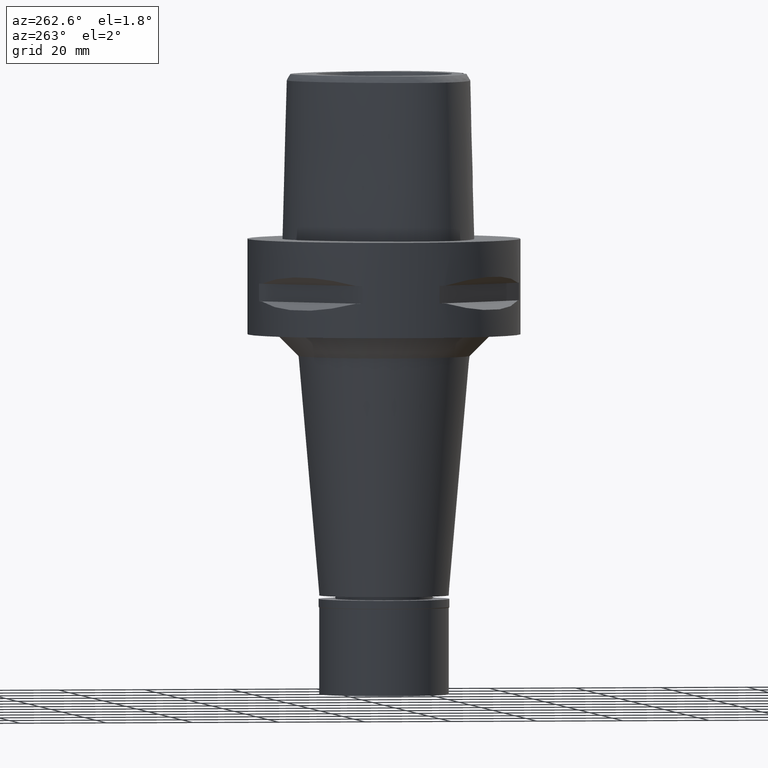
[diagram: clean part render]
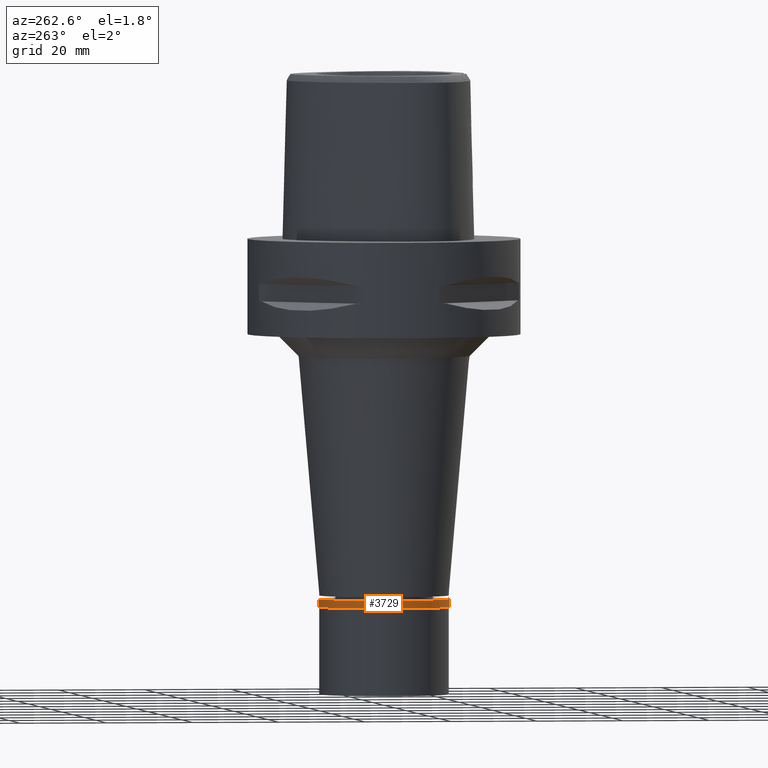
[diagram: same view with one face highlighted and labeled with its STEP entity id]
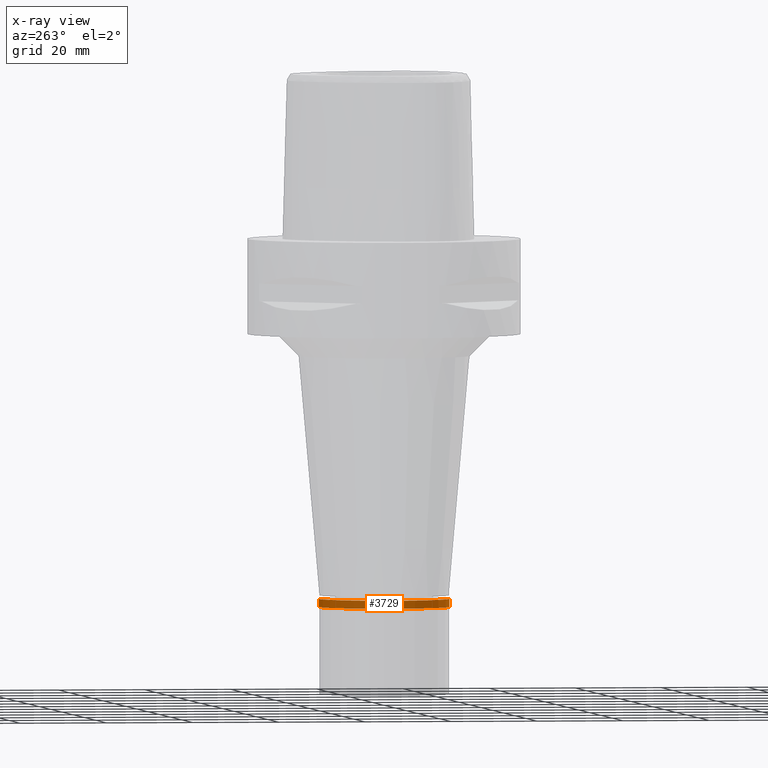
[diagram: x-ray of the same camera — body ghosted, the highlighted face saturated]
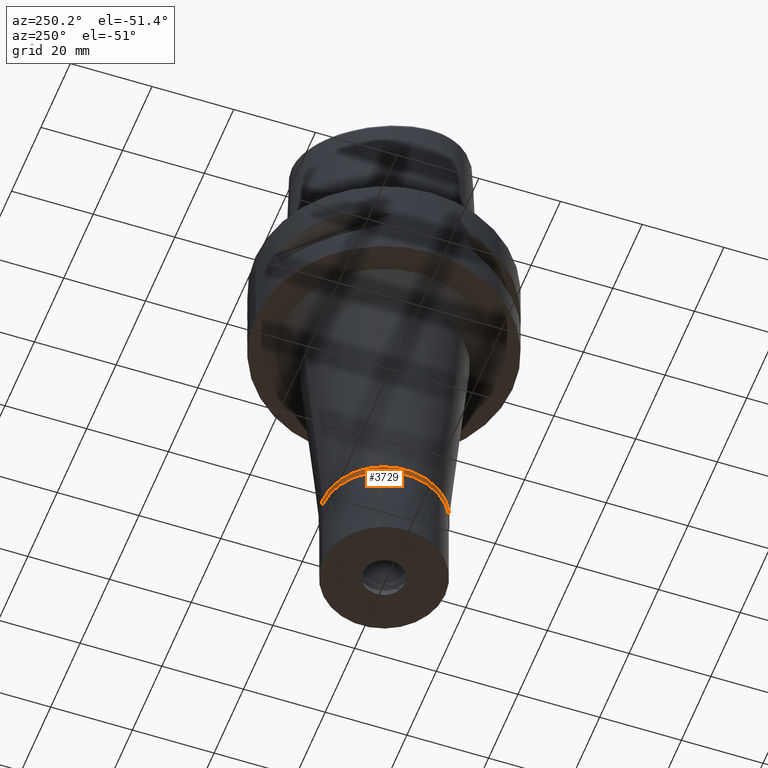
[diagram: same view with one face highlighted and labeled with its STEP entity id]
A machine part, auxiliary view. The second image highlights one B-rep face of the part: STEP entity #3729.
The next image is the same camera in x-ray: the body ghosted, the highlighted face saturated — about 0% of this face is hidden behind the body in this view.
A second angle (auxiliary view) of the same face is appended — the face is thin or edge-on in the first view.
In plain terms, the highlighted cylindrical surface (partial cylindrical patch) has radius 15.15 mm, axis along (0, 0, -1).
Its self-contained STEP definition (entity closure, byte-faithful):
#16 = ORIENTED_EDGE ( 'NONE', *, *, #1906, .T. ) ;
#24 = DIRECTION ( 'NONE',  ( 0.0000000000000000000, -1.000000000000000000, 0.0000000000000000000 ) ) ;
#305 = VECTOR ( 'NONE', #2811, 1000.000000000000000 ) ;
#320 = ORIENTED_EDGE ( 'NONE', *, *, #4412, .T. ) ;
#612 = ORIENTED_EDGE ( 'NONE', *, *, #2991, .T. ) ;
#761 = DIRECTION ( 'NONE',  ( 0.0000000000000000000, 0.0000000000000000000, -1.000000000000000000 ) ) ;
#823 = CYLINDRICAL_SURFACE ( 'NONE', #1797, 15.15000000000000036 ) ;
#888 = CIRCLE ( 'NONE', #3337, 15.15000000000000036 ) ;
#1219 = CARTESIAN_POINT ( 'NONE',  ( 0.0000000000000000000, -15.15000000000000036, 0.0000000000000000000 ) ) ;
#1575 = EDGE_CURVE ( 'NONE', #4929, #1802, #3258, .T. ) ;
#1718 = VECTOR ( 'NONE', #4864, 1000.000000000000000 ) ;
#1797 = AXIS2_PLACEMENT_3D ( 'NONE', #3608, #3170, #24 ) ;
#1802 = VERTEX_POINT ( 'NONE', #2567 ) ;
#1873 = DIRECTION ( 'NONE',  ( 0.0000000000000000000, 1.000000000000000000, 0.0000000000000000000 ) ) ;
#1906 = EDGE_CURVE ( 'NONE', #4929, #4690, #5049, .T. ) ;
#1974 = FACE_OUTER_BOUND ( 'NONE', #3096, .T. ) ;
#2165 = CARTESIAN_POINT ( 'NONE',  ( 0.0000000000000000000, -15.15000000000000036, 0.0000000000000000000 ) ) ;
#2202 = CARTESIAN_POINT ( 'NONE',  ( 0.0000000000000000000, 15.15000000000000036, -1.850000000000000089 ) ) ;
#2480 = LINE ( 'NONE', #4039, #1718 ) ;
#2522 = AXIS2_PLACEMENT_3D ( 'NONE', #3432, #761, #4613 ) ;
#2567 = CARTESIAN_POINT ( 'NONE',  ( 0.0000000000000000000, -15.15000000000000036, -1.850000000000000089 ) ) ;
#2811 = DIRECTION ( 'NONE',  ( 0.0000000000000000000, 0.0000000000000000000, -1.000000000000000000 ) ) ;
#2991 = EDGE_CURVE ( 'NONE', #4690, #3107, #2480, .T. ) ;
#3096 = EDGE_LOOP ( 'NONE', ( #320, #3759, #16, #612 ) ) ;
#3107 = VERTEX_POINT ( 'NONE', #2202 ) ;
#3170 = DIRECTION ( 'NONE',  ( 0.0000000000000000000, 0.0000000000000000000, -1.000000000000000000 ) ) ;
#3258 = LINE ( 'NONE', #1219, #305 ) ;
#3337 = AXIS2_PLACEMENT_3D ( 'NONE', #3841, #3449, #1873 ) ;
#3432 = CARTESIAN_POINT ( 'NONE',  ( 0.0000000000000000000, 0.0000000000000000000, 0.0000000000000000000 ) ) ;
#3449 = DIRECTION ( 'NONE',  ( 0.0000000000000000000, 0.0000000000000000000, 1.000000000000000000 ) ) ;
#3608 = CARTESIAN_POINT ( 'NONE',  ( 0.0000000000000000000, 0.0000000000000000000, 0.0000000000000000000 ) ) ;
#3729 = ADVANCED_FACE ( 'NONE', ( #1974 ), #823, .T. ) ;
#3759 = ORIENTED_EDGE ( 'NONE', *, *, #1575, .F. ) ;
#3841 = CARTESIAN_POINT ( 'NONE',  ( 0.0000000000000000000, 0.0000000000000000000, -1.850000000000000089 ) ) ;
#3857 = CARTESIAN_POINT ( 'NONE',  ( 0.0000000000000000000, 15.15000000000000036, 0.0000000000000000000 ) ) ;
#4039 = CARTESIAN_POINT ( 'NONE',  ( 0.0000000000000000000, 15.15000000000000036, 0.0000000000000000000 ) ) ;
#4412 = EDGE_CURVE ( 'NONE', #3107, #1802, #888, .T. ) ;
#4613 = DIRECTION ( 'NONE',  ( 0.0000000000000000000, -1.000000000000000000, 0.0000000000000000000 ) ) ;
#4690 = VERTEX_POINT ( 'NONE', #3857 ) ;
#4864 = DIRECTION ( 'NONE',  ( 0.0000000000000000000, 0.0000000000000000000, -1.000000000000000000 ) ) ;
#4929 = VERTEX_POINT ( 'NONE', #2165 ) ;
#5049 = CIRCLE ( 'NONE', #2522, 15.15000000000000036 ) ;